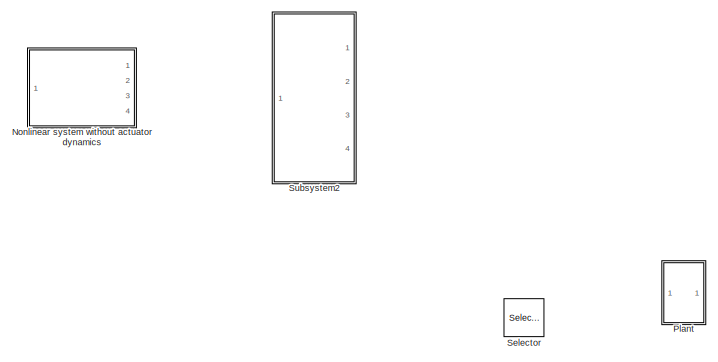
[diagram: root canvas - part 1/2, left side, full height]
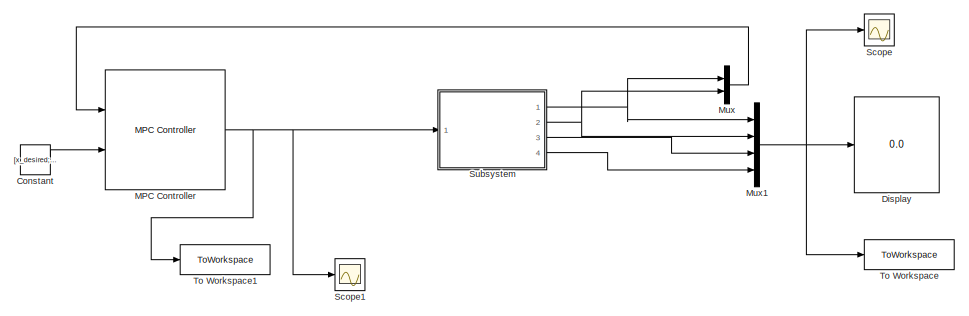
[diagram: root canvas - part 2/2, right side, full height]
MODEL slx_0617134d2939
KIND model
CONFIG AbsTol = auto
CONFIG EnableMultiTasking = off
CONFIG FixedStep = auto
CONFIG MaxStep = auto
CONFIG MinStep = auto
CONFIG RelTol = 1e-3
CONFIG SampleTimeConstraint = Unconstrained
CONFIG Solver = VariableStepAuto
CONFIG SolverName = VariableStepAuto
CONFIG StartTime = 0.0
CONFIG StopTime = 25
BLOCK [Constant] Constant
  Value = [x_desired;0]
BLOCK [Display] Display
  Decimation = 1
  Ports = [1]
BLOCK [Reference] MPC Controller  REF=mpclib/MPC Controller  (lib defined in mdl_ae329e0e0455)
  Ports = [2, 1]
  SCDEnableBlockLinearizationSpecification = on
  SourceBlock = mpclib/MPC Controller
  SourceProductBaseCode = MP
  SourceType = MPC
BLOCK [Mux] Mux
  DisplayOption = bar
  Inputs = 2
  Ports = [2, 1]
BLOCK [Mux] Mux1
  DisplayOption = bar
  Ports = [4, 1]
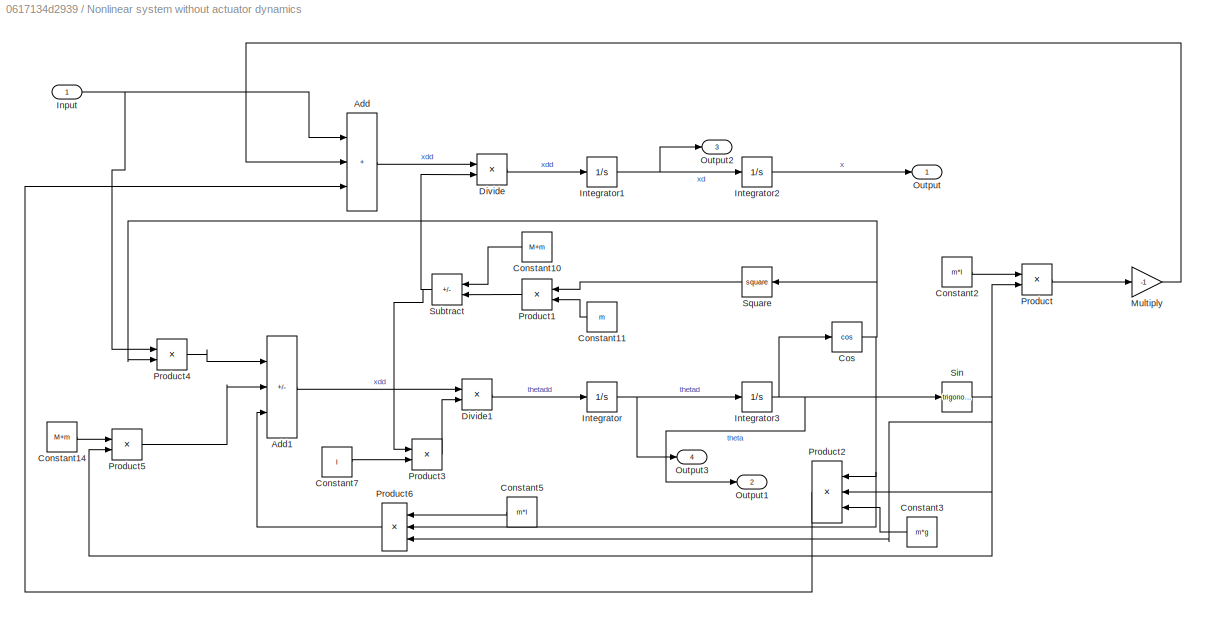
BLOCK [SubSystem] Nonlinear system without actuator dynamics
  Commented = on
  Ports = [1, 4]
  RequestExecContextInheritance = off
BLOCK [Sum] Nonlinear system without actuator dynamics/Add
  IconShape = rectangular
  Inputs = +++
  Ports = [3, 1]
BLOCK [Sum] Nonlinear system without actuator dynamics/Add1
  IconShape = rectangular
  Inputs = ++-
  Ports = [3, 1]
BLOCK [Constant] Nonlinear system without actuator dynamics/Constant10
  Value = M+m
BLOCK [Constant] Nonlinear system without actuator dynamics/Constant11
  Value = m
BLOCK [Constant] Nonlinear system without actuator dynamics/Constant14
  Value = M+m
BLOCK [Constant] Nonlinear system without actuator dynamics/Constant2
  Value = m*l
BLOCK [Constant] Nonlinear system without actuator dynamics/Constant3
  Value = m*g
BLOCK [Constant] Nonlinear system without actuator dynamics/Constant5
  Value = m*l
BLOCK [Constant] Nonlinear system without actuator dynamics/Constant7
  Value = l
BLOCK [Trigonometry] Nonlinear system without actuator dynamics/Cos
  Operator = cos
  Ports = [1, 1]
BLOCK [Product] Nonlinear system without actuator dynamics/Divide
  Inputs = */
  Ports = [2, 1]
BLOCK [Product] Nonlinear system without actuator dynamics/Divide1
  Inputs = */
  Ports = [2, 1]
BLOCK [Inport] Nonlinear system without actuator dynamics/Input
BLOCK [Integrator] Nonlinear system without actuator dynamics/Integrator
  Ports = [1, 1]
BLOCK [Integrator] Nonlinear system without actuator dynamics/Integrator1
  Ports = [1, 1]
BLOCK [Integrator] Nonlinear system without actuator dynamics/Integrator2
  Ports = [1, 1]
BLOCK [Integrator] Nonlinear system without actuator dynamics/Integrator3
  Ports = [1, 1]
BLOCK [Gain] Nonlinear system without actuator dynamics/Multiply
  Gain = -1
BLOCK [Outport] Nonlinear system without actuator dynamics/Output
BLOCK [Outport] Nonlinear system without actuator dynamics/Output1
  Port = 2
BLOCK [Outport] Nonlinear system without actuator dynamics/Output2
  Port = 3
BLOCK [Outport] Nonlinear system without actuator dynamics/Output3
  Port = 4
BLOCK [Product] Nonlinear system without actuator dynamics/Product
  Ports = [2, 1]
BLOCK [Product] Nonlinear system without actuator dynamics/Product1
  Ports = [2, 1]
BLOCK [Product] Nonlinear system without actuator dynamics/Product2
  Inputs = 3
  Ports = [3, 1]
BLOCK [Product] Nonlinear system without actuator dynamics/Product3
  Ports = [2, 1]
BLOCK [Product] Nonlinear system without actuator dynamics/Product4
  Ports = [2, 1]
BLOCK [Product] Nonlinear system without actuator dynamics/Product5
  Ports = [2, 1]
BLOCK [Product] Nonlinear system without actuator dynamics/Product6
  Inputs = 3
  Ports = [3, 1]
BLOCK [Trigonometry] Nonlinear system without actuator dynamics/Sin
  Ports = [1, 1]
BLOCK [Math] Nonlinear system without actuator dynamics/Square
  Operator = square
  Ports = [1, 1]
BLOCK [Sum] Nonlinear system without actuator dynamics/Subtract
  IconShape = rectangular
  Inputs = +-
  Ports = [2, 1]
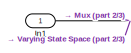
[diagram: Plant - part 1/3, top left region]
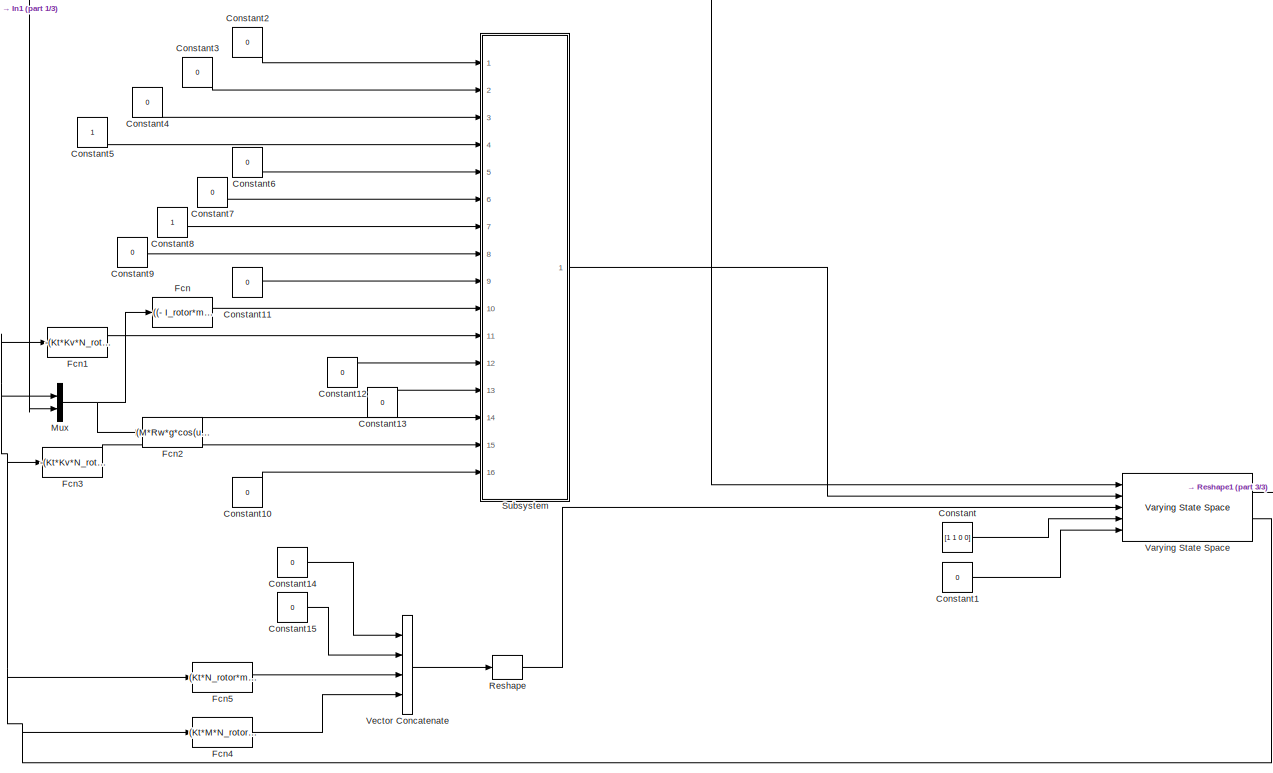
[diagram: Plant - part 2/3, center side, full height]
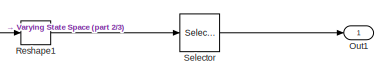
[diagram: Plant - part 3/3, bottom right region]
BLOCK [SubSystem] Plant
  Commented = on
  Ports = [1, 1]
  RequestExecContextInheritance = off
BLOCK [Constant] Plant/Constant
  Value = [1 1 0 0]
BLOCK [Constant] Plant/Constant1
  Value = 0
BLOCK [Constant] Plant/Constant10
  Value = 0
BLOCK [Constant] Plant/Constant11
  Value = 0
BLOCK [Constant] Plant/Constant12
  Value = 0
BLOCK [Constant] Plant/Constant13
  Value = 0
BLOCK [Constant] Plant/Constant14
  Value = 0
BLOCK [Constant] Plant/Constant15
  Value = 0
BLOCK [Constant] Plant/Constant2
  Value = 0
BLOCK [Constant] Plant/Constant3
  Value = 0
BLOCK [Constant] Plant/Constant4
  Value = 0
BLOCK [Constant] Plant/Constant5
BLOCK [Constant] Plant/Constant6
  Value = 0
BLOCK [Constant] Plant/Constant7
  Value = 0
BLOCK [Constant] Plant/Constant8
BLOCK [Constant] Plant/Constant9
  Value = 0
BLOCK [Fcn] Plant/Fcn
  Expr = ((- I_rotor*m*sin(u(2))*N_rotor^2*r_pulley^2 + 2*m*cos(u(2))*sin(u(2)))*(Kt*Kv*m*u(3)*cos(u(2))*N_rotor^2 - Kt*m*u(5)*cos(u(2))*N_rotor + Rw*l*m*sin(u(2)) - Rw*g*m*cos(u(2))*sin(u(2))))/(Rw*(I_rotor*m*cos(u(2))*N_rotor^2*r_pulley^2 + M + m - m*cos(u(2))^2)^2) - (Rw*l*m*cos(u(2)) - Rw*g*m*cos(u(2))^2 + Rw*g*m*sin(u(2))^2 + Kt*N_rotor*m*u(5)*sin(u(2)) - Kt*Kv*N_rotor^2*m*u(3)*sin(u(2)))/(Rw*(I_rotor...<+59ch>
BLOCK [Fcn] Plant/Fcn1
  Expr = -(Kt*Kv*N_rotor^2*m*cos(u(2)))/(Rw*(I_rotor*m*cos(u(2))*N_rotor^2*r_pulley^2 + M + m - m*cos(u(2))^2))
BLOCK [Fcn] Plant/Fcn2
  Expr = (M*Rw*g*cos(u(2)) + Rw*g*m*cos(u(2)) - Rw*l*m*cos(u(2))^2 + Rw*l*m*sin(u(2))^2 + I_rotor*N_rotor^2*Rw*l*m*r_pulley^2*cos(u(2)))/(Rw*l*(I_rotor*m*cos(u(2))*N_rotor^2*r_pulley^2 + M + m - m*cos(u(2))^2)) - ((- I_rotor*m*sin(u(2))*N_rotor^2*r_pulley^2 + 2*m*cos(u(2))*sin(u(2)))*(M*Rw*g*sin(u(2)) + Rw*g*m*sin(u(2)) + Kt*M*N_rotor*u(5) + Kt*N_rotor*m* u(5) - Rw*l*m*cos(u(2))*sin(u(2)) - Kt*Kv*M*N_rotor...<+158ch>
BLOCK [Fcn] Plant/Fcn3
  Expr = -(Kt*Kv*N_rotor^2*m + Kt*Kv*M*N_rotor^2)/(Rw*l*(I_rotor*m*cos(u(2))*N_rotor^2*r_pulley^2 + M + m - m*cos(u(2))^2))
BLOCK [Fcn] Plant/Fcn4
  Expr = (Kt*M*N_rotor + Kt*N_rotor*m)/(Rw*l*(I_rotor*m*cos(u(2))*N_rotor^2*r_pulley^2 + M + m - m*cos(u(2))^2))
BLOCK [Fcn] Plant/Fcn5
  Expr = (Kt*N_rotor*m*cos(u(2)))/(Rw*(I_rotor*m*cos(u(2))*N_rotor^2*r_pulley^2 + M + m - m*cos(u(2))^2))
BLOCK [Inport] Plant/In1
BLOCK [Mux] Plant/Mux
  DisplayOption = bar
  Inputs = 2
  Ports = [2, 1]
BLOCK [Outport] Plant/Out1
BLOCK [Reshape] Plant/Reshape
  OutputDimensionality = Column vector (2-D)
  OutputDimensions = [4,1]
  Ports = [1, 1]
BLOCK [Reshape] Plant/Reshape1
  OutputDimensionality = Column vector (2-D)
  Ports = [1, 1]
BLOCK [Selector] Plant/Selector
  IndexOptions = Index vector (dialog)
  Indices = [1 5 9 13]
  InputPortWidth = 16
  OutputSizes = 1
  Ports = [1, 1]
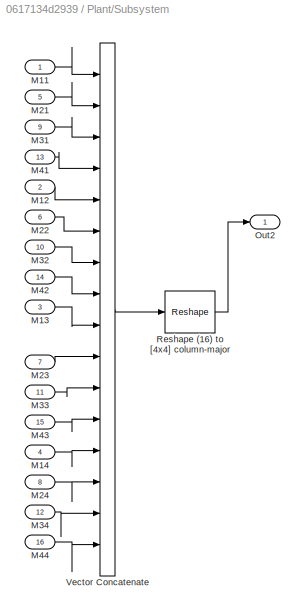
BLOCK [SubSystem] Plant/Subsystem
  Ports = [16, 1]
  RequestExecContextInheritance = off
BLOCK [Inport] Plant/Subsystem/M11
  PortDimensions = 1
BLOCK [Inport] Plant/Subsystem/M12
  Port = 2
  PortDimensions = 1
BLOCK [Inport] Plant/Subsystem/M13
  Port = 3
  PortDimensions = 1
BLOCK [Inport] Plant/Subsystem/M14
  Port = 4
  PortDimensions = 1
BLOCK [Inport] Plant/Subsystem/M21
  Port = 5
  PortDimensions = 1
BLOCK [Inport] Plant/Subsystem/M22
  Port = 6
  PortDimensions = 1
BLOCK [Inport] Plant/Subsystem/M23
  Port = 7
  PortDimensions = 1
BLOCK [Inport] Plant/Subsystem/M24
  Port = 8
  PortDimensions = 1
BLOCK [Inport] Plant/Subsystem/M31
  Port = 9
  PortDimensions = 1
BLOCK [Inport] Plant/Subsystem/M32
  Port = 10
  PortDimensions = 1
BLOCK [Inport] Plant/Subsystem/M33
  Port = 11
  PortDimensions = 1
BLOCK [Inport] Plant/Subsystem/M34
  Port = 12
  PortDimensions = 1
BLOCK [Inport] Plant/Subsystem/M41
  Port = 13
  PortDimensions = 1
BLOCK [Inport] Plant/Subsystem/M42
  Port = 14
  PortDimensions = 1
BLOCK [Inport] Plant/Subsystem/M43
  Port = 15
  PortDimensions = 1
BLOCK [Inport] Plant/Subsystem/M44
  Port = 16
  PortDimensions = 1
BLOCK [Outport] Plant/Subsystem/Out2
BLOCK [Reshape] Plant/Subsystem/Reshape (16) to [4x4] column-major
  OutputDimensionality = Customize
  OutputDimensions = [4,4]
  Ports = [1, 1]
BLOCK [Concatenate] Plant/Subsystem/Vector Concatenate
  NumInputs = 16
  Ports = [16, 1]
BLOCK [Reference] Plant/Varying State Space  REF=cstblocks/Linear Parameter Varying/Varying State Space
  Ports = [5, 2]
  SourceBlock = cstblocks/Linear Parameter Varying/Varying State Space
  SourceProductBaseCode = CT
  SourceType = Varying State Space
BLOCK [Concatenate] Plant/Vector Concatenate
  NumInputs = 4
  Ports = [4, 1]
BLOCK [Scope] Scope
  Floating = off
  NumInputPorts = 1
  Ports = [1]
  ScopeSpecificationString = Simulink.scopes.TimeScopeBlockCfg('CurrentConfiguration', extmgr.ConfigurationSet(extmgr.Configuration('Core','General UI',true),extmgr.Configuration('Core','Source UI',true),extmgr.Configuration('Sources','WiredSimulink',true),extmgr.Configuration('Visuals','Time Domain',true,'SerializedDisplays',{struct('MinYLimReal','-1.47886','MaxYLimReal','0.54929','YLabelReal','','MinYLimMag','0.00000','MaxY...<+1520ch>
BLOCK [Scope] Scope1
  Floating = off
  NumInputPorts = 1
  Ports = [1]
  ScopeSpecificationString = Simulink.scopes.TimeScopeBlockCfg('CurrentConfiguration', extmgr.ConfigurationSet(extmgr.Configuration('Core','General UI',true),extmgr.Configuration('Core','Source UI',true),extmgr.Configuration('Sources','WiredSimulink',true,'DataLoggingVariableName','ScopeData1'),extmgr.Configuration('Visuals','Time Domain',true,'SerializedDisplays',{struct('MinYLimReal','-43.1311','MaxYLimReal','28.17993','YLa...<+1375ch>
BLOCK [Selector] Selector
  Commented = on
  IndexOptions = Index vector (dialog)
  Indices = [1 2]
  InputPortWidth = 4
  NameLocation = top
  OutputSizes = 1
  Ports = [1, 1]
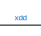
[diagram: Subsystem - part 1/4, top center region]
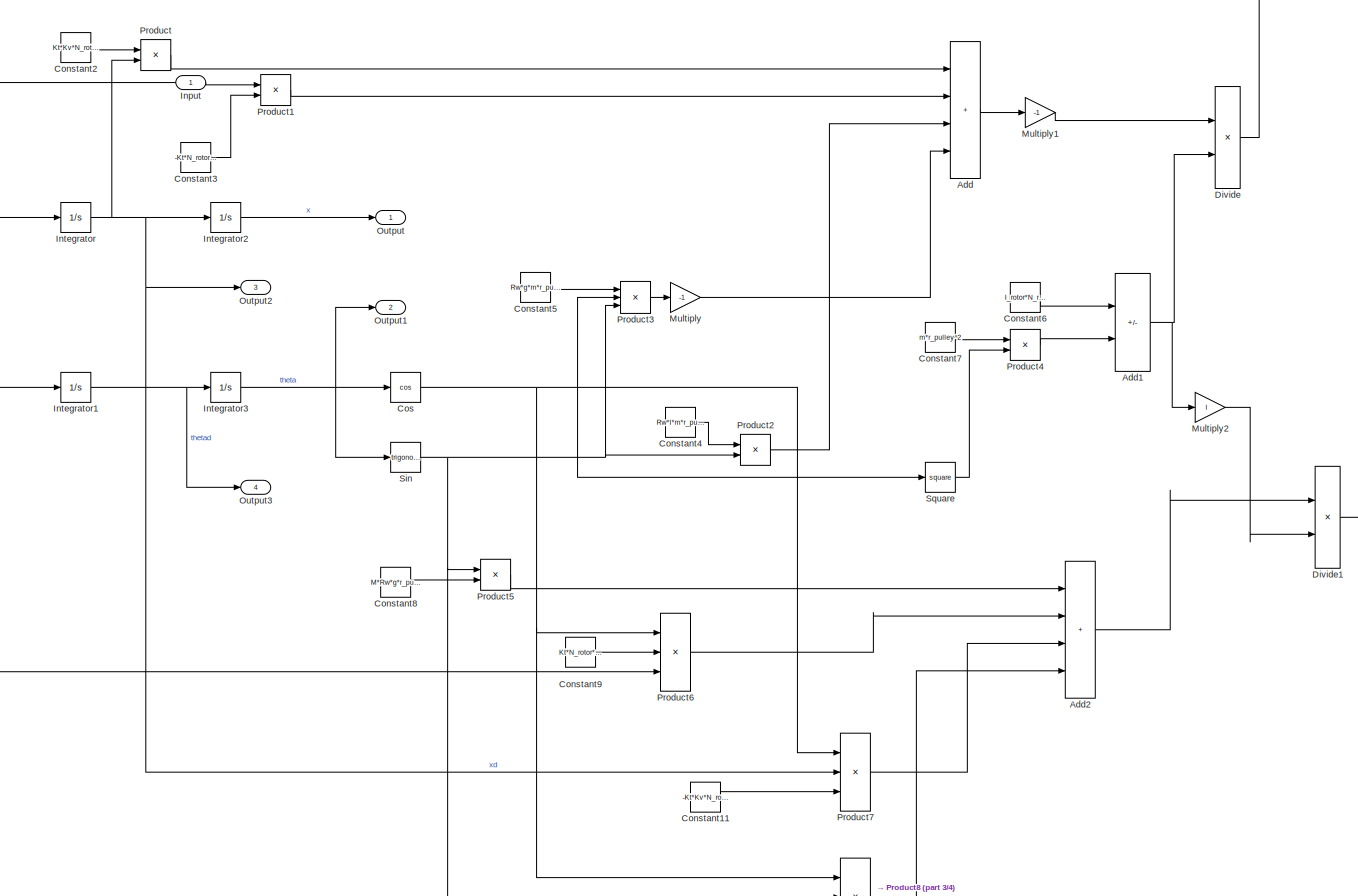
[diagram: Subsystem - part 2/4, most of the canvas]
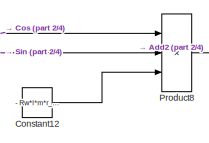
[diagram: Subsystem - part 3/4, bottom center region]
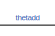
[diagram: Subsystem - part 4/4, bottom center region]
BLOCK [SubSystem] Subsystem
  Ports = [1, 4]
  RequestExecContextInheritance = off
BLOCK [Sum] Subsystem/Add
  IconShape = rectangular
  Inputs = ++++
  Ports = [4, 1]
BLOCK [Sum] Subsystem/Add1
  IconShape = rectangular
  Inputs = +-
  Ports = [2, 1]
BLOCK [Sum] Subsystem/Add2
  IconShape = rectangular
  Inputs = ++++
  Ports = [4, 1]
BLOCK [Constant] Subsystem/Constant11
  Value = -Kt*Kv*N_rotor^2
BLOCK [Constant] Subsystem/Constant12
  Value = - Rw*l*m*r_pulley^2
BLOCK [Constant] Subsystem/Constant2
  Value = Kt*Kv*N_rotor^2
BLOCK [Constant] Subsystem/Constant3
  Value = -Kt*N_rotor*r_pulley
BLOCK [Constant] Subsystem/Constant4
  Value = Rw*l*m*r_pulley^2
BLOCK [Constant] Subsystem/Constant5
  Value = Rw*g*m*r_pulley^2
BLOCK [Constant] Subsystem/Constant6
  Value = I_rotor*N_rotor^2 + M*r_pulley^2 + m*r_pulley^2
BLOCK [Constant] Subsystem/Constant7
  Value = m*r_pulley^2
BLOCK [Constant] Subsystem/Constant8
  Value = M*Rw*g*r_pulley^2+Rw*g*m*r_pulley^2+I_rotor*N_rotor^2*Rw*g
BLOCK [Constant] Subsystem/Constant9
  Value = Kt*N_rotor*r_pulley
BLOCK [Trigonometry] Subsystem/Cos
  Operator = cos
  Ports = [1, 1]
BLOCK [Product] Subsystem/Divide
  Inputs = */
  Ports = [2, 1]
BLOCK [Product] Subsystem/Divide1
  Inputs = */
  Ports = [2, 1]
BLOCK [Inport] Subsystem/Input
BLOCK [Integrator] Subsystem/Integrator
  Ports = [1, 1]
BLOCK [Integrator] Subsystem/Integrator1
  Ports = [1, 1]
BLOCK [Integrator] Subsystem/Integrator2
  Ports = [1, 1]
BLOCK [Integrator] Subsystem/Integrator3
  Ports = [1, 1]
BLOCK [Gain] Subsystem/Multiply
  Gain = -1
BLOCK [Gain] Subsystem/Multiply1
  Gain = -1
BLOCK [Gain] Subsystem/Multiply2
  Gain = l
BLOCK [Outport] Subsystem/Output
BLOCK [Outport] Subsystem/Output1
  Port = 2
BLOCK [Outport] Subsystem/Output2
  Port = 3
BLOCK [Outport] Subsystem/Output3
  Port = 4
BLOCK [Product] Subsystem/Product
  Ports = [2, 1]
BLOCK [Product] Subsystem/Product1
  Ports = [2, 1]
BLOCK [Product] Subsystem/Product2
  Ports = [2, 1]
BLOCK [Product] Subsystem/Product3
  Inputs = 3
  Ports = [3, 1]
BLOCK [Product] Subsystem/Product4
  Ports = [2, 1]
BLOCK [Product] Subsystem/Product5
  Ports = [2, 1]
BLOCK [Product] Subsystem/Product6
  Inputs = 3
  Ports = [3, 1]
BLOCK [Product] Subsystem/Product7
  Inputs = 3
  Ports = [3, 1]
BLOCK [Product] Subsystem/Product8
  Inputs = 3
  Ports = [3, 1]
BLOCK [Trigonometry] Subsystem/Sin
  Ports = [1, 1]
BLOCK [Math] Subsystem/Square
  Operator = square
  Ports = [1, 1]
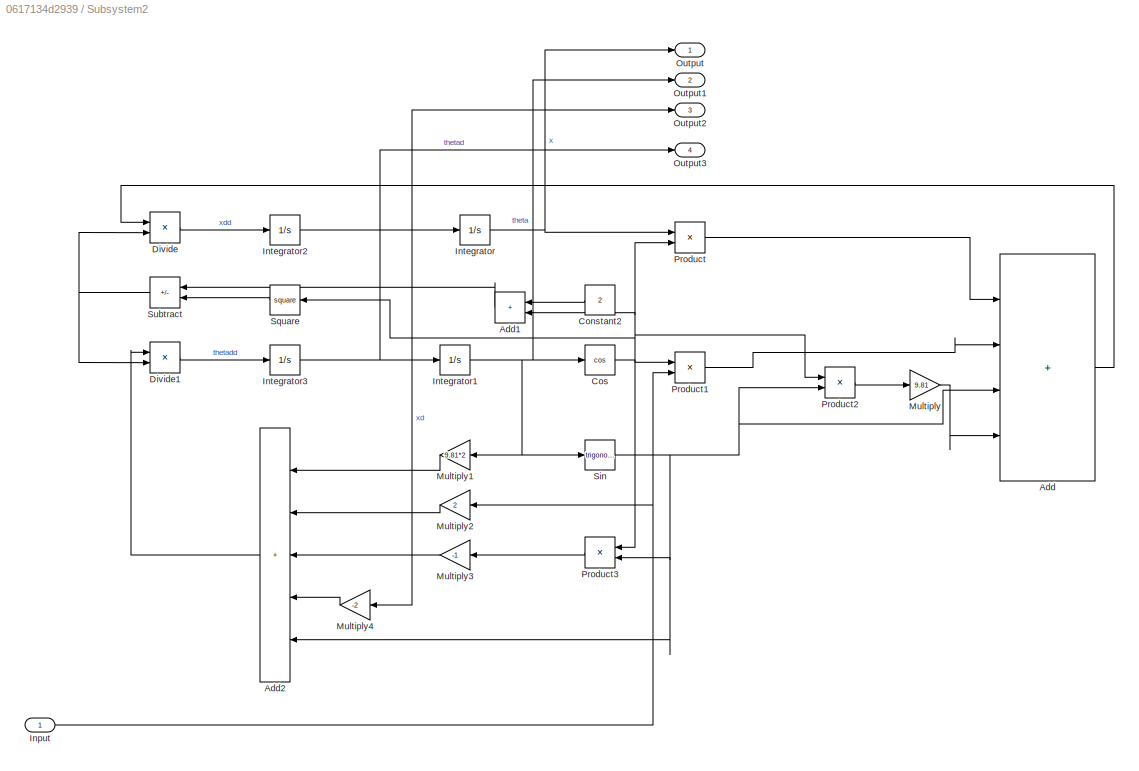
BLOCK [SubSystem] Subsystem2
  Commented = on
  Ports = [1, 4]
  RequestExecContextInheritance = off
BLOCK [Sum] Subsystem2/Add
  IconShape = rectangular
  Inputs = ++++
  Ports = [4, 1]
BLOCK [Sum] Subsystem2/Add1
  IconShape = rectangular
  Ports = [2, 1]
BLOCK [Sum] Subsystem2/Add2
  IconShape = rectangular
  Inputs = +++++
  Ports = [5, 1]
BLOCK [Constant] Subsystem2/Constant2
  NameLocation = top
  Value = 2
BLOCK [Trigonometry] Subsystem2/Cos
  Operator = cos
  Ports = [1, 1]
BLOCK [Product] Subsystem2/Divide
  Inputs = */
  Ports = [2, 1]
BLOCK [Product] Subsystem2/Divide1
  Inputs = */
  Ports = [2, 1]
BLOCK [Inport] Subsystem2/Input
BLOCK [Integrator] Subsystem2/Integrator
  Ports = [1, 1]
BLOCK [Integrator] Subsystem2/Integrator1
  Ports = [1, 1]
BLOCK [Integrator] Subsystem2/Integrator2
  Ports = [1, 1]
BLOCK [Integrator] Subsystem2/Integrator3
  Ports = [1, 1]
BLOCK [Gain] Subsystem2/Multiply
  Gain = 9.81
BLOCK [Gain] Subsystem2/Multiply1
  Gain = 9.81*2
BLOCK [Gain] Subsystem2/Multiply2
  Gain = 2
BLOCK [Gain] Subsystem2/Multiply3
  Gain = -1
BLOCK [Gain] Subsystem2/Multiply4
  Gain = -2
BLOCK [Outport] Subsystem2/Output
BLOCK [Outport] Subsystem2/Output1
  Port = 2
BLOCK [Outport] Subsystem2/Output2
  Port = 3
BLOCK [Outport] Subsystem2/Output3
  Port = 4
BLOCK [Product] Subsystem2/Product
  Ports = [2, 1]
BLOCK [Product] Subsystem2/Product1
  Ports = [2, 1]
BLOCK [Product] Subsystem2/Product2
  Ports = [2, 1]
BLOCK [Product] Subsystem2/Product3
  Ports = [2, 1]
BLOCK [Trigonometry] Subsystem2/Sin
  Ports = [1, 1]
BLOCK [Math] Subsystem2/Square
  Operator = square
  Ports = [1, 1]
BLOCK [Sum] Subsystem2/Subtract
  IconShape = rectangular
  Inputs = +-
  Ports = [2, 1]
BLOCK [ToWorkspace] To Workspace
  FixptAsFi = on
  MaxDataPoints = inf
  Ports = [1]
  SampleTime = -1
  VariableName = Xout
BLOCK [ToWorkspace] To Workspace1
  FixptAsFi = on
  MaxDataPoints = inf
  Ports = [1]
  SampleTime = -1
  VariableName = Uout
LINE Constant:1 -> MPC Controller:2
NET MPC Controller:1 -> Scope1:1, Subsystem:1, To Workspace1:1
NET Mux1:1 -> Display:1, Scope:1, To Workspace:1
LINE Mux:1 -> MPC Controller:1
LINE Nonlinear system without actuator dynamics/Add1:1 -> Nonlinear system without actuator dynamics/Divide1:1
LINE Nonlinear system without actuator dynamics/Add:1 -> Nonlinear system without actuator dynamics/Divide:1
LINE Nonlinear system without actuator dynamics/Constant10:1 -> Nonlinear system without actuator dynamics/Subtract:1
LINE Nonlinear system without actuator dynamics/Constant11:1 -> Nonlinear system without actuator dynamics/Product1:2
LINE Nonlinear system without actuator dynamics/Constant14:1 -> Nonlinear system without actuator dynamics/Product5:1
LINE Nonlinear system without actuator dynamics/Constant2:1 -> Nonlinear system without actuator dynamics/Product:1
LINE Nonlinear system without actuator dynamics/Constant3:1 -> Nonlinear system without actuator dynamics/Product2:3
LINE Nonlinear system without actuator dynamics/Constant5:1 -> Nonlinear system without actuator dynamics/Product6:1
LINE Nonlinear system without actuator dynamics/Constant7:1 -> Nonlinear system without actuator dynamics/Product3:2
NET Nonlinear system without actuator dynamics/Cos:1 -> Nonlinear system without actuator dynamics/Product2:1, Nonlinear system without actuator dynamics/Product4:2, Nonlinear system without actuator dynamics/Product6:2, Nonlinear system without actuator dynamics/Square:1
LINE Nonlinear system without actuator dynamics/Divide1:1 -> Nonlinear system without actuator dynamics/Integrator:1
LINE Nonlinear system without actuator dynamics/Divide:1 -> Nonlinear system without actuator dynamics/Integrator1:1
NET Nonlinear system without actuator dynamics/Input:1 -> Nonlinear system without actuator dynamics/Add:1, Nonlinear system without actuator dynamics/Product4:1
NET Nonlinear system without actuator dynamics/Integrator1:1 -> Nonlinear system without actuator dynamics/Integrator2:1, Nonlinear system without actuator dynamics/Output2:1
LINE Nonlinear system without actuator dynamics/Integrator2:1 -> Nonlinear system without actuator dynamics/Output:1
NET Nonlinear system without actuator dynamics/Integrator3:1 -> Nonlinear system without actuator dynamics/Cos:1, Nonlinear system without actuator dynamics/Output1:1, Nonlinear system without actuator dynamics/Sin:1
NET Nonlinear system without actuator dynamics/Integrator:1 -> Nonlinear system without actuator dynamics/Integrator3:1, Nonlinear system without actuator dynamics/Output3:1
LINE Nonlinear system without actuator dynamics/Multiply:1 -> Nonlinear system without actuator dynamics/Add:2
LINE Nonlinear system without actuator dynamics/Product1:1 -> Nonlinear system without actuator dynamics/Subtract:2
LINE Nonlinear system without actuator dynamics/Product2:1 -> Nonlinear system without actuator dynamics/Add:3
LINE Nonlinear system without actuator dynamics/Product3:1 -> Nonlinear system without actuator dynamics/Divide1:2
LINE Nonlinear system without actuator dynamics/Product4:1 -> Nonlinear system without actuator dynamics/Add1:1
LINE Nonlinear system without actuator dynamics/Product5:1 -> Nonlinear system without actuator dynamics/Add1:2
LINE Nonlinear system without actuator dynamics/Product6:1 -> Nonlinear system without actuator dynamics/Add1:3
LINE Nonlinear system without actuator dynamics/Product:1 -> Nonlinear system without actuator dynamics/Multiply:1
NET Nonlinear system without actuator dynamics/Sin:1 -> Nonlinear system without actuator dynamics/Product2:2, Nonlinear system without actuator dynamics/Product5:2, Nonlinear system without actuator dynamics/Product6:3, Nonlinear system without actuator dynamics/Product:2
LINE Nonlinear system without actuator dynamics/Square:1 -> Nonlinear system without actuator dynamics/Product1:1
NET Nonlinear system without actuator dynamics/Subtract:1 -> Nonlinear system without actuator dynamics/Divide:2, Nonlinear system without actuator dynamics/Product3:1
LINE Plant/Constant10:1 -> Plant/Subsystem:16
LINE Plant/Constant11:1 -> Plant/Subsystem:9
LINE Plant/Constant12:1 -> Plant/Subsystem:12
LINE Plant/Constant13:1 -> Plant/Subsystem:13
LINE Plant/Constant14:1 -> Plant/Vector Concatenate:1
LINE Plant/Constant15:1 -> Plant/Vector Concatenate:2
LINE Plant/Constant1:1 -> Plant/Varying State Space:5
LINE Plant/Constant2:1 -> Plant/Subsystem:1
LINE Plant/Constant3:1 -> Plant/Subsystem:2
LINE Plant/Constant4:1 -> Plant/Subsystem:3
LINE Plant/Constant5:1 -> Plant/Subsystem:4
LINE Plant/Constant6:1 -> Plant/Subsystem:5
LINE Plant/Constant7:1 -> Plant/Subsystem:6
LINE Plant/Constant8:1 -> Plant/Subsystem:7
LINE Plant/Constant9:1 -> Plant/Subsystem:8
LINE Plant/Constant:1 -> Plant/Varying State Space:4
LINE Plant/Fcn1:1 -> Plant/Subsystem:11
LINE Plant/Fcn2:1 -> Plant/Subsystem:14
LINE Plant/Fcn3:1 -> Plant/Subsystem:15
LINE Plant/Fcn4:1 -> Plant/Vector Concatenate:4
LINE Plant/Fcn5:1 -> Plant/Vector Concatenate:3
LINE Plant/Fcn:1 -> Plant/Subsystem:10
NET Plant/In1:1 -> Plant/Mux:2, Plant/Varying State Space:1
NET Plant/Mux:1 -> Plant/Fcn2:1, Plant/Fcn:1
LINE Plant/Reshape1:1 -> Plant/Selector:1
LINE Plant/Reshape:1 -> Plant/Varying State Space:3
LINE Plant/Selector:1 -> Plant/Out1:1
LINE Plant/Subsystem/M11:1 -> Plant/Subsystem/Vector Concatenate:1
LINE Plant/Subsystem/M12:1 -> Plant/Subsystem/Vector Concatenate:5
LINE Plant/Subsystem/M13:1 -> Plant/Subsystem/Vector Concatenate:9
LINE Plant/Subsystem/M14:1 -> Plant/Subsystem/Vector Concatenate:13
LINE Plant/Subsystem/M21:1 -> Plant/Subsystem/Vector Concatenate:2
LINE Plant/Subsystem/M22:1 -> Plant/Subsystem/Vector Concatenate:6
LINE Plant/Subsystem/M23:1 -> Plant/Subsystem/Vector Concatenate:10
LINE Plant/Subsystem/M24:1 -> Plant/Subsystem/Vector Concatenate:14
LINE Plant/Subsystem/M31:1 -> Plant/Subsystem/Vector Concatenate:3
LINE Plant/Subsystem/M32:1 -> Plant/Subsystem/Vector Concatenate:7
LINE Plant/Subsystem/M33:1 -> Plant/Subsystem/Vector Concatenate:11
LINE Plant/Subsystem/M34:1 -> Plant/Subsystem/Vector Concatenate:15
LINE Plant/Subsystem/M41:1 -> Plant/Subsystem/Vector Concatenate:4
LINE Plant/Subsystem/M42:1 -> Plant/Subsystem/Vector Concatenate:8
LINE Plant/Subsystem/M43:1 -> Plant/Subsystem/Vector Concatenate:12
LINE Plant/Subsystem/M44:1 -> Plant/Subsystem/Vector Concatenate:16
LINE Plant/Subsystem/Reshape (16) to [4x4] column-major:1 -> Plant/Subsystem/Out2:1
LINE Plant/Subsystem/Vector Concatenate:1 -> Plant/Subsystem/Reshape (16) to [4x4] column-major:1
LINE Plant/Subsystem:1 -> Plant/Varying State Space:2
LINE Plant/Varying State Space:1 -> Plant/Reshape1:1
NET Plant/Varying State Space:2 -> Plant/Fcn1:1, Plant/Fcn3:1, Plant/Fcn4:1, Plant/Fcn5:1, Plant/Mux:1
LINE Plant/Vector Concatenate:1 -> Plant/Reshape:1
NET Subsystem/Add1:1 -> Subsystem/Divide:2, Subsystem/Multiply2:1
LINE Subsystem/Add2:1 -> Subsystem/Divide1:1
LINE Subsystem/Add:1 -> Subsystem/Multiply1:1
LINE Subsystem/Constant11:1 -> Subsystem/Product7:3
LINE Subsystem/Constant12:1 -> Subsystem/Product8:3
LINE Subsystem/Constant2:1 -> Subsystem/Product:1
LINE Subsystem/Constant3:1 -> Subsystem/Product1:2
LINE Subsystem/Constant4:1 -> Subsystem/Product2:1
LINE Subsystem/Constant5:1 -> Subsystem/Product3:1
LINE Subsystem/Constant6:1 -> Subsystem/Add1:1
LINE Subsystem/Constant7:1 -> Subsystem/Product4:1
LINE Subsystem/Constant8:1 -> Subsystem/Product5:2
LINE Subsystem/Constant9:1 -> Subsystem/Product6:2
NET Subsystem/Cos:1 -> Subsystem/Product3:2, Subsystem/Product6:1, Subsystem/Product7:1, Subsystem/Product8:1, Subsystem/Square:1
LINE Subsystem/Divide1:1 -> Subsystem/Integrator1:1
LINE Subsystem/Divide:1 -> Subsystem/Integrator:1
NET Subsystem/Input:1 -> Subsystem/Product1:1, Subsystem/Product6:3
NET Subsystem/Integrator1:1 -> Subsystem/Integrator3:1, Subsystem/Output3:1
LINE Subsystem/Integrator2:1 -> Subsystem/Output:1
NET Subsystem/Integrator3:1 -> Subsystem/Cos:1, Subsystem/Output1:1, Subsystem/Sin:1
NET Subsystem/Integrator:1 -> Subsystem/Integrator2:1, Subsystem/Output2:1, Subsystem/Product7:2, Subsystem/Product:2
LINE Subsystem/Multiply1:1 -> Subsystem/Divide:1
LINE Subsystem/Multiply2:1 -> Subsystem/Divide1:2
LINE Subsystem/Multiply:1 -> Subsystem/Add:4
LINE Subsystem/Product1:1 -> Subsystem/Add:2
LINE Subsystem/Product2:1 -> Subsystem/Add:3
LINE Subsystem/Product3:1 -> Subsystem/Multiply:1
LINE Subsystem/Product4:1 -> Subsystem/Add1:2
LINE Subsystem/Product5:1 -> Subsystem/Add2:1
LINE Subsystem/Product6:1 -> Subsystem/Add2:2
LINE Subsystem/Product7:1 -> Subsystem/Add2:3
LINE Subsystem/Product8:1 -> Subsystem/Add2:4
LINE Subsystem/Product:1 -> Subsystem/Add:1
NET Subsystem/Sin:1 -> Subsystem/Product2:2, Subsystem/Product3:3, Subsystem/Product5:1, Subsystem/Product8:2
LINE Subsystem/Square:1 -> Subsystem/Product4:2
LINE Subsystem2/Add1:1 -> Subsystem2/Subtract:1
LINE Subsystem2/Add2:1 -> Subsystem2/Divide1:1
LINE Subsystem2/Add:1 -> Subsystem2/Divide:1
LINE Subsystem2/Constant2:1 -> Subsystem2/Add1:1
NET Subsystem2/Cos:1 -> Subsystem2/Add1:2, Subsystem2/Product1:1, Subsystem2/Product2:1, Subsystem2/Product3:1, Subsystem2/Product:2, Subsystem2/Square:1
LINE Subsystem2/Divide1:1 -> Subsystem2/Integrator3:1
LINE Subsystem2/Divide:1 -> Subsystem2/Integrator2:1
NET Subsystem2/Input:1 -> Subsystem2/Multiply2:1, Subsystem2/Product1:2
NET Subsystem2/Integrator1:1 -> Subsystem2/Cos:1, Subsystem2/Multiply1:1, Subsystem2/Output1:1, Subsystem2/Sin:1
NET Subsystem2/Integrator2:1 -> Subsystem2/Integrator:1, Subsystem2/Multiply4:1, Subsystem2/Output2:1
NET Subsystem2/Integrator3:1 -> Subsystem2/Integrator1:1, Subsystem2/Output3:1
NET Subsystem2/Integrator:1 -> Subsystem2/Output:1, Subsystem2/Product:1
LINE Subsystem2/Multiply1:1 -> Subsystem2/Add2:1
LINE Subsystem2/Multiply2:1 -> Subsystem2/Add2:2
LINE Subsystem2/Multiply3:1 -> Subsystem2/Add2:3
LINE Subsystem2/Multiply4:1 -> Subsystem2/Add2:4
LINE Subsystem2/Multiply:1 -> Subsystem2/Add:4
LINE Subsystem2/Product1:1 -> Subsystem2/Add:2
LINE Subsystem2/Product2:1 -> Subsystem2/Multiply:1
LINE Subsystem2/Product3:1 -> Subsystem2/Multiply3:1
LINE Subsystem2/Product:1 -> Subsystem2/Add:1
NET Subsystem2/Sin:1 -> Subsystem2/Add2:5, Subsystem2/Add:3, Subsystem2/Product2:2, Subsystem2/Product3:2
LINE Subsystem2/Square:1 -> Subsystem2/Subtract:2
NET Subsystem2/Subtract:1 -> Subsystem2/Divide1:2, Subsystem2/Divide:2
NET Subsystem:1 -> Mux1:1, Mux:1
NET Subsystem:2 -> Mux1:2, Mux:2
LINE Subsystem:3 -> Mux1:3
LINE Subsystem:4 -> Mux1:4
note: NET lines group one-source signal fan-out (src -> all destinations, sorted); 1:1 wires keep LINE
